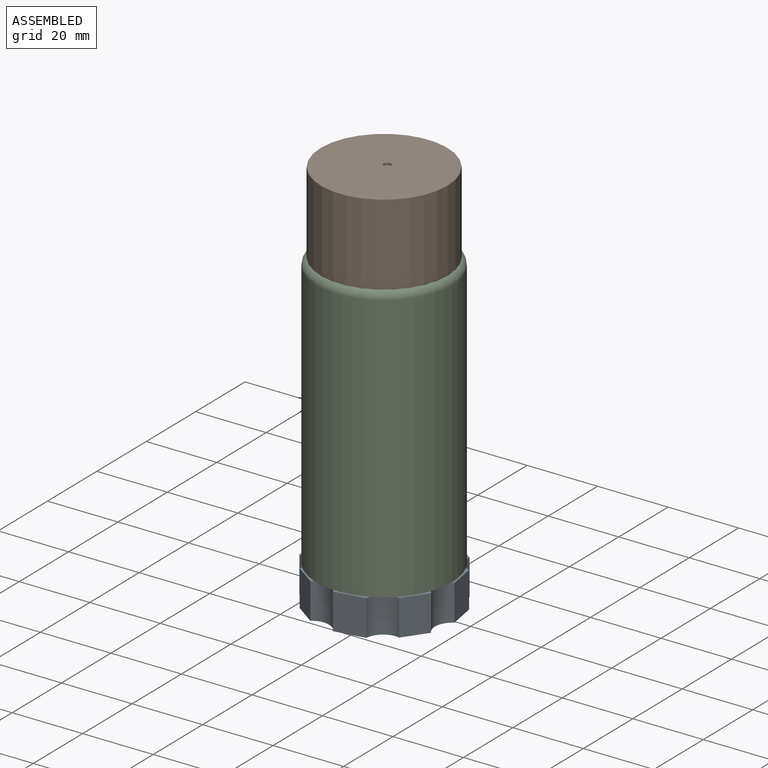
[diagram: assembled view]
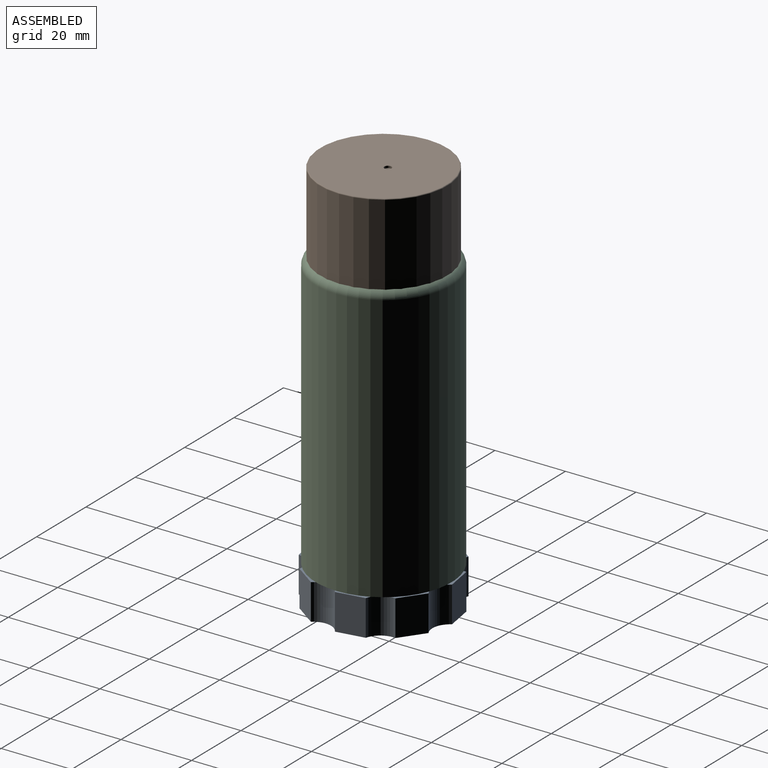
[diagram: assembled view, second angle]
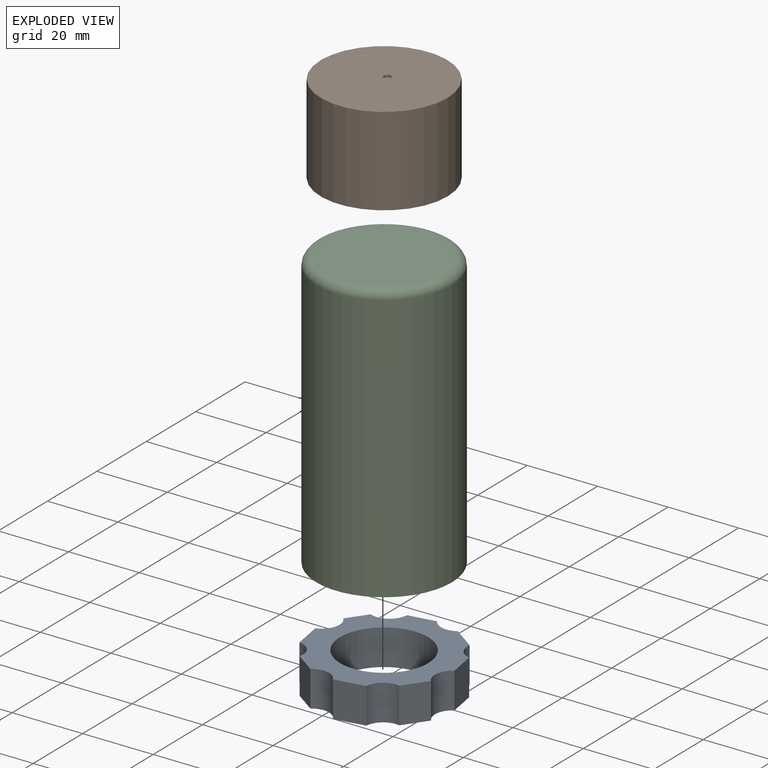
[diagram: exploded view]
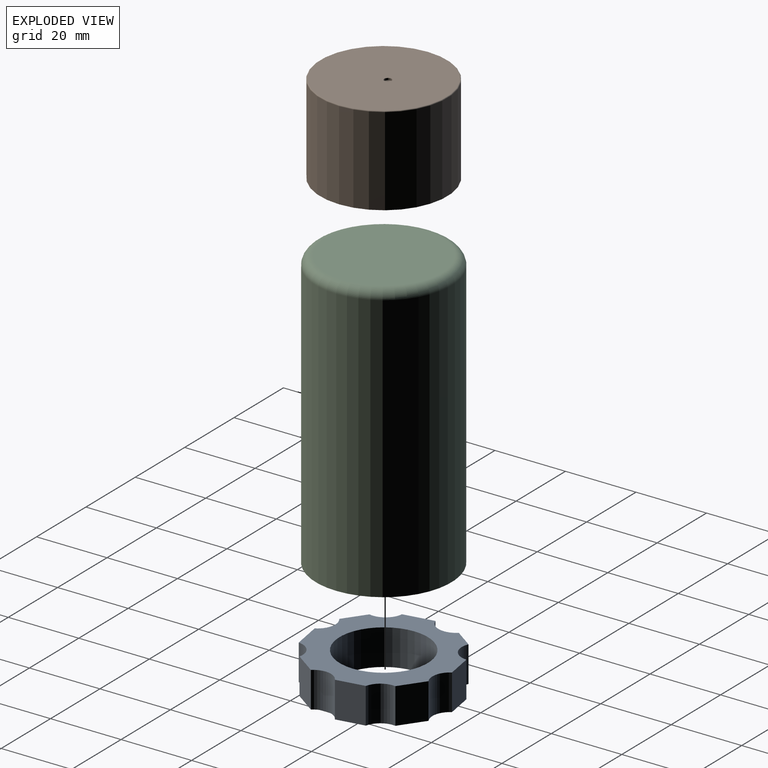
[diagram: exploded view, second angle]
ASSEMBLY  parts=3 mates=2
PART A: 19 faces, bbox 39.9x40x10.2 mm
  f0: plane 10.16x8.49mm, normal (0.17,-0.99,0), area 87.5mm2, adj f8,f9,f14,f15
  f1: plane 10.16x6.4mm, normal (0.82,-0.58,0), area 79.8mm2, adj f8,f9,f15,f16
  f2: plane 10.16x7.84mm, normal (0.99,0.17,0), area 80.8mm2, adj f8,f9,f16,f17
  f3: plane 10.16x6.66mm, normal (0.58,0.82,0), area 83mm2, adj f8,f9,f10,f17
  f4: plane 10.16x7.69mm, normal (-0.17,0.99,0), area 79.2mm2, adj f8,f9,f10,f11
  f5: plane 10.16x5.48mm, normal (-0.82,0.58,0), area 68.2mm2, adj f8,f9,f11,f12
  f6: plane 10.16x8.48mm, normal (-0.99,-0.17,0), area 87.3mm2, adj f8,f9,f12,f13
  f7: plane 10.16x6.05mm, normal (-0.58,-0.82,0), area 75.4mm2, adj f8,f9,f13,f14
  f8: plane 40.04x39.88mm, normal (0,0,1), area 655.9mm2, adj f0,f1,f2,f3,f4,f5,f6,f7
  f9: plane 40.04x39.88mm, normal (0,0,-1), area 655.9mm2, adj f0,f1,f2,f3,f4,f5,f6,f7
  f10: cylinder r=5.08mm len=10.16mm, axis (0,0,-1), area 82.4mm2, adj f3,f4,f8,f9
  f11: cylinder r=5.08mm len=10.16mm, axis (0,0,-1), area 100.8mm2, adj f4,f5,f8,f9
  f12: cylinder r=5.08mm len=10.16mm, axis (0,0,-1), area 102.2mm2, adj f5,f6,f8,f9
  f13: cylinder r=5.08mm len=10.16mm, axis (0,0,-1), area 87.1mm2, adj f6,f7,f8,f9
  f14: cylinder r=5.08mm len=10.16mm, axis (0,0,-1), area 89.7mm2, adj f0,f7,f8,f9
  f15: cylinder r=5.08mm len=10.16mm, axis (0,0,-1), area 88mm2, adj f0,f1,f8,f9
  f16: cylinder r=5.08mm len=10.16mm, axis (0,0,-1), area 90.1mm2, adj f1,f2,f8,f9
  f17: cylinder r=5.08mm len=10.16mm, axis (0,0,-1), area 76.6mm2, adj f2,f3,f8,f9
  f18: cylinder r=12.5mm len=25mm, axis (0,0,-1), area 798mm2, adj f8,f9
PART B: 64 faces, bbox 36.1x35.9x25.4 mm
  f0: plane 25.15x3.44mm, normal (0.41,0.91,0), area 94.8mm2, adj f1,f29,f31,f57
  f1: plane 25.15x3.69mm, normal (0.21,0.98,0), area 94.8mm2, adj f0,f2,f31,f55
  f2: plane 25.15x3.77mm, normal (0,1,0), area 94.8mm2, adj f1,f3,f31,f53
  f3: plane 25.15x3.69mm, normal (-0.21,0.98,0), area 94.8mm2, adj f2,f4,f31,f51
  f4: plane 25.15x3.44mm, normal (-0.41,0.91,0), area 94.8mm2, adj f3,f5,f31,f49
  f5: plane 25.15x3.05mm, normal (-0.59,0.81,0), area 94.8mm2, adj f4,f6,f31,f47
  f6: plane 25.15x2.8mm, normal (-0.74,0.67,0), area 94.8mm2, adj f5,f7,f31,f45
  f7: plane 25.15x3.26mm, normal (-0.87,0.5,0), area 94.8mm2, adj f6,f8,f31,f43
  f8: plane 25.15x3.58mm, normal (-0.95,0.31,0), area 94.8mm2, adj f7,f9,f31,f41
  f9: plane 25.15x3.75mm, normal (-0.99,0.11,0), area 94.8mm2, adj f8,f10,f31,f39
  f10: plane 25.15x3.75mm, normal (-0.99,-0.1,0), area 94.8mm2, adj f9,f11,f31,f37
  f11: plane 25.15x3.59mm, normal (-0.95,-0.31,0), area 94.8mm2, adj f10,f12,f31,f35
  f12: plane 25.15x3.27mm, normal (-0.87,-0.5,0), area 94.8mm2, adj f11,f13,f31,f33
  f13: plane 25.15x2.8mm, normal (-0.74,-0.67,0), area 94.8mm2, adj f12,f14,f31,f32
  f14: plane 25.15x3.05mm, normal (-0.59,-0.81,0), area 94.8mm2, adj f13,f15,f31,f34
  f15: plane 25.15x3.44mm, normal (-0.41,-0.91,0), area 94.8mm2, adj f14,f16,f31,f36
  f16: plane 25.15x3.69mm, normal (-0.21,-0.98,0), area 94.8mm2, adj f15,f17,f31,f38
  f17: plane 25.15x3.77mm, normal (0,-1,0), area 94.8mm2, adj f16,f18,f31,f40
  f18: plane 25.15x3.69mm, normal (0.21,-0.98,0), area 94.8mm2, adj f17,f19,f31,f42
  f19: plane 25.15x3.44mm, normal (0.41,-0.91,0), area 94.8mm2, adj f18,f20,f31,f44
  f20: plane 25.15x3.05mm, normal (0.59,-0.81,0), area 94.8mm2, adj f19,f21,f31,f46
  f21: plane 25.15x2.8mm, normal (0.74,-0.67,0), area 94.8mm2, adj f20,f22,f31,f48
  f22: plane 25.15x3.26mm, normal (0.87,-0.5,0), area 94.8mm2, adj f21,f23,f31,f50
  f23: plane 25.15x3.58mm, normal (0.95,-0.31,0), area 94.8mm2, adj f22,f24,f31,f52
  f24: plane 25.15x3.75mm, normal (0.99,-0.11,0), area 94.8mm2, adj f23,f25,f31,f54
  f25: plane 25.15x3.75mm, normal (0.99,0.1,0), area 94.8mm2, adj f24,f26,f31,f56
  f26: plane 25.15x3.59mm, normal (0.95,0.31,0), area 94.8mm2, adj f25,f27,f31,f58
  f27: plane 25.15x3.27mm, normal (0.87,0.5,0), area 94.8mm2, adj f26,f28,f31,f60
  f28: plane 25.15x2.8mm, normal (0.74,0.67,0), area 94.8mm2, adj f27,f29,f31,f61
  f29: plane 25.15x3.05mm, normal (0.59,0.81,0), area 94.8mm2, adj f0,f28,f31,f59
  f30: plane 35.54x35.35mm, normal (0,0,1), area 981.8mm2, adj f32,f33,f34,f35,f36,f37,f38,f39
  f31: plane 36.05x35.86mm, normal (0,0,-1), area 1013.4mm2, adj f0,f1,f2,f3,f4,f5,f6,f7
  f32: cylinder r=0.25mm len=2.97mm, axis (-0.67,0.74,0), area 1.5mm2, adj f13,f30,f33,f34
  f33: cylinder r=0.25mm len=3.39mm, axis (-0.5,0.87,0), area 1.5mm2, adj f12,f30,f32,f35
  f34: cylinder r=0.25mm len=3.2mm, axis (-0.81,0.59,0), area 1.5mm2, adj f14,f30,f32,f36
  f35: cylinder r=0.25mm len=3.66mm, axis (-0.31,0.95,0), area 1.5mm2, adj f11,f30,f33,f37
  f36: cylinder r=0.25mm len=3.55mm, axis (-0.91,0.41,0), area 1.5mm2, adj f15,f30,f34,f38
  f37: cylinder r=0.25mm len=3.77mm, axis (-0.1,0.99,0), area 1.5mm2, adj f10,f30,f35,f39
  f38: cylinder r=0.25mm len=3.74mm, axis (-0.98,0.21,0), area 1.5mm2, adj f16,f30,f36,f40
  f39: cylinder r=0.25mm len=3.77mm, axis (0.11,0.99,0), area 1.5mm2, adj f9,f30,f37,f41
  f40: cylinder r=0.25mm len=3.77mm, axis (-1,0,0), area 1.5mm2, adj f17,f30,f38,f42
  f41: cylinder r=0.25mm len=3.66mm, axis (0.31,0.95,0), area 1.5mm2, adj f8,f30,f39,f43
  f42: cylinder r=0.25mm len=3.74mm, axis (-0.98,-0.21,0), area 1.5mm2, adj f18,f30,f40,f44
  f43: cylinder r=0.25mm len=3.39mm, axis (0.5,0.87,0), area 1.5mm2, adj f7,f30,f41,f45
  f44: cylinder r=0.25mm len=3.55mm, axis (-0.91,-0.41,0), area 1.5mm2, adj f19,f30,f42,f46
  f45: cylinder r=0.25mm len=2.97mm, axis (0.67,0.74,0), area 1.5mm2, adj f6,f30,f43,f47
  f46: cylinder r=0.25mm len=3.2mm, axis (-0.81,-0.59,0), area 1.5mm2, adj f20,f30,f44,f48
  f47: cylinder r=0.25mm len=3.2mm, axis (0.81,0.59,0), area 1.5mm2, adj f5,f30,f45,f49
  f48: cylinder r=0.25mm len=2.97mm, axis (-0.67,-0.74,0), area 1.5mm2, adj f21,f30,f46,f50
  f49: cylinder r=0.25mm len=3.55mm, axis (0.91,0.41,0), area 1.5mm2, adj f4,f30,f47,f51
  f50: cylinder r=0.25mm len=3.39mm, axis (-0.5,-0.87,0), area 1.5mm2, adj f22,f30,f48,f52
  f51: cylinder r=0.25mm len=3.74mm, axis (0.98,0.21,0), area 1.5mm2, adj f3,f30,f49,f53
  f52: cylinder r=0.25mm len=3.66mm, axis (-0.31,-0.95,0), area 1.5mm2, adj f23,f30,f50,f54
  f53: cylinder r=0.25mm len=3.77mm, axis (1,0,0), area 1.5mm2, adj f2,f30,f51,f55
  f54: cylinder r=0.25mm len=3.77mm, axis (-0.11,-0.99,0), area 1.5mm2, adj f24,f30,f52,f56
  f55: cylinder r=0.25mm len=3.74mm, axis (0.98,-0.21,0), area 1.5mm2, adj f1,f30,f53,f57
  f56: cylinder r=0.25mm len=3.77mm, axis (0.1,-0.99,0), area 1.5mm2, adj f25,f30,f54,f58
  f57: cylinder r=0.25mm len=3.55mm, axis (0.91,-0.41,0), area 1.5mm2, adj f0,f30,f55,f59
  f58: cylinder r=0.25mm len=3.66mm, axis (0.31,-0.95,0), area 1.5mm2, adj f26,f30,f56,f60
  f59: cylinder r=0.25mm len=3.2mm, axis (0.81,-0.59,0), area 1.5mm2, adj f29,f30,f57,f61
  f60: cylinder r=0.25mm len=3.39mm, axis (0.5,-0.87,0), area 1.5mm2, adj f27,f30,f58,f61
  f61: cylinder r=0.25mm len=2.97mm, axis (0.67,-0.74,0), area 1.5mm2, adj f28,f30,f59,f60
  f62: cone r=0mm half-angle=59deg, axis (0,0,1), area 3.7mm2, adj f63
  f63: cylinder r=1mm len=2mm, axis (0,0,1), area 3.8mm2, adj f30,f62
PART C: 10 faces, bbox 41.6x41.6x78.7 mm
  f0: cylinder r=19.21mm len=76.13mm, axis (0,0,-1), area 9190.9mm2, adj f2,f3
  f1: plane 33.35x33.35mm, normal (0,0,1), area 873.5mm2, adj f3
  f2: plane 38.43x38.43mm, normal (0,0,-1), area 1017mm2, adj f0,f6
  f3: torus R=16.67mm, axis (0,0,1), area 458.5mm2, adj f0,f1
  f4: cone r=0mm half-angle=59deg, axis (0,0,-1), area 4.8mm2, adj f5
  f5: cylinder r=1.15mm len=6.27mm, axis (0,0,-1), area 45.3mm2, adj f4,f6
  f6: cone r=1.15mm half-angle=41deg, axis (0,0,-1), area 211.4mm2, adj f2,f5
  f7: plane 33.73x33.73mm, normal (0,0,1), area 893.5mm2, adj f9
  f8: plane 33.73x33.73mm, normal (0,0,-1), area 893.5mm2, adj f9
  f9: cylinder r=16.86mm len=43.49mm, axis (0,0,-1), area 4608.3mm2, adj f7,f8
PLACE A t=(45.87,56.6,-53.81)mm
PLACE B t=(45.87,56.6,32.48)mm
PLACE C t=(48.66,50.2,-43.65)mm
MATE parallel C.f0 <-> B.f31  axis (0,0,1) through (45.87,56.6,32.48)mm
MATE parallel A.f18 <-> C.f0  axis (0,0,1) through (45.87,56.6,-43.65)mm
